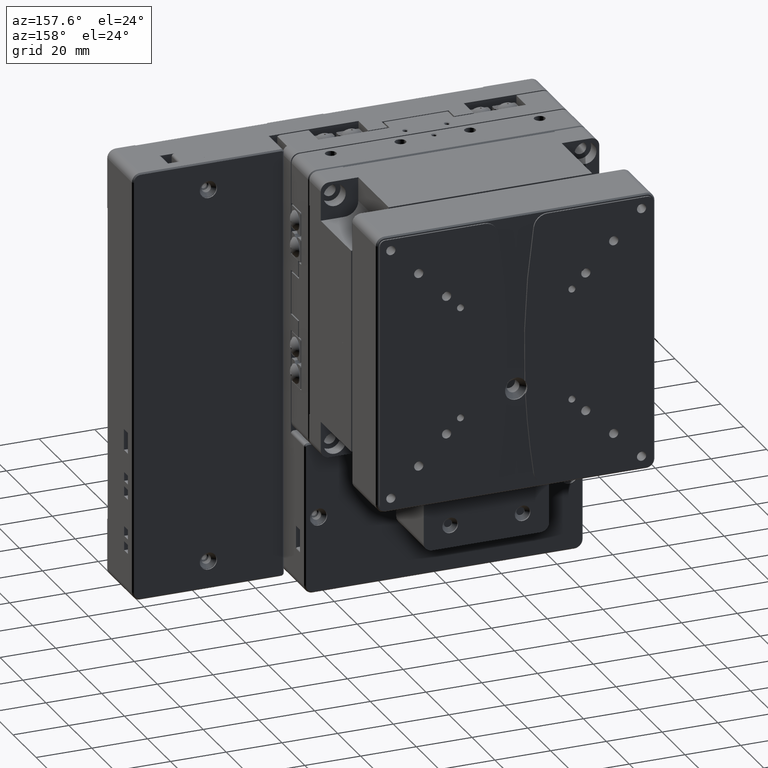
[diagram: clean part render]
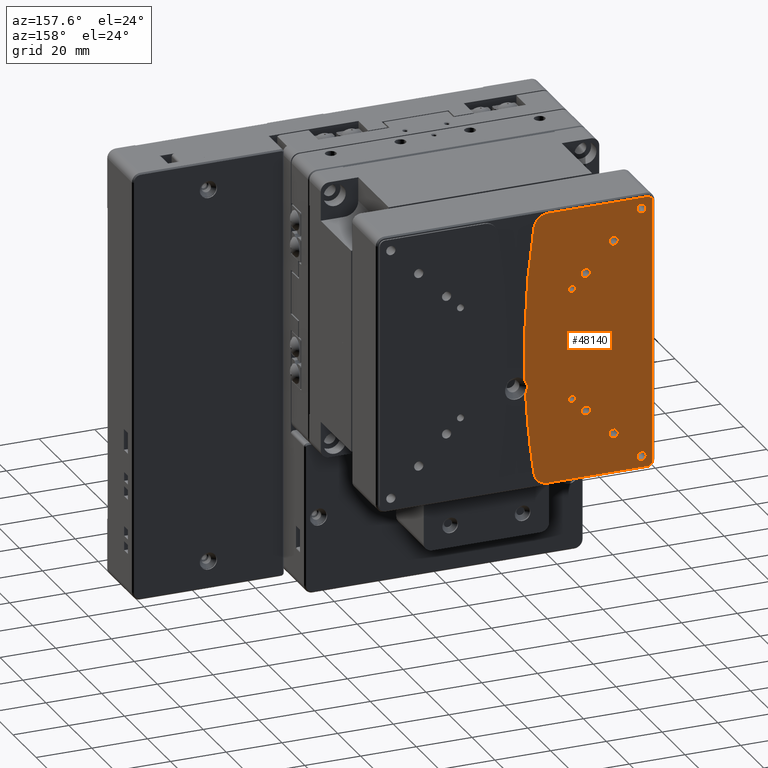
[diagram: same view with one face highlighted and labeled with its STEP entity id]
A machine part, auxiliary view. The second image highlights one B-rep face of the part: STEP entity #48140.
In plain terms, the highlighted planar face has unit normal (-0, 1, -0).
Its self-contained STEP definition (entity closure, byte-faithful):
#51 = CARTESIAN_POINT ( 'NONE',  ( -303.0000000000000000, 101.5000000000000000, 3.826911070425408497E-13 ) ) ;
#88 = VECTOR ( 'NONE', #40896, 1000.000000000000000 ) ;
#167 = DIRECTION ( 'NONE',  ( -3.812484297624379892E-23, 1.000000000000000000, -3.650532473168982942E-23 ) ) ;
#452 = FACE_BOUND ( 'NONE', #54695, .T. ) ;
#501 = AXIS2_PLACEMENT_3D ( 'NONE', #35456, #52552, #39930 ) ;
#608 = AXIS2_PLACEMENT_3D ( 'NONE', #51, #38616, #37796 ) ;
#647 = DIRECTION ( 'NONE',  ( -1.000000000000000000, -3.812484297624374602E-23, 1.387778780781445281E-15 ) ) ;
#1157 = AXIS2_PLACEMENT_3D ( 'NONE', #51674, #5231, #13043 ) ;
#1812 = DIRECTION ( 'NONE',  ( 3.812484297624379892E-23, -1.000000000000000000, 3.650532473168982942E-23 ) ) ;
#2329 = CARTESIAN_POINT ( 'NONE',  ( -43.34999999999994458, 101.5000000000000000, 45.00000000000001421 ) ) ;
#2350 = CIRCLE ( 'NONE', #33606, 2.000000000000001776 ) ;
#2788 = CARTESIAN_POINT ( 'NONE',  ( -11.29981145018092903, 101.5000000000000000, 48.99999999999997868 ) ) ;
#3147 = VERTEX_POINT ( 'NONE', #51242 ) ;
#3273 = DIRECTION ( 'NONE',  ( -1.000000000000000000, 0.000000000000000000, 0.000000000000000000 ) ) ;
#3573 = ORIENTED_EDGE ( 'NONE', *, *, #7753, .T. ) ;
#3678 = CARTESIAN_POINT ( 'NONE',  ( -24.99999999999997513, 101.5000000000000000, 24.99999999999999289 ) ) ;
#4370 = VERTEX_POINT ( 'NONE', #16317 ) ;
#4991 = VERTEX_POINT ( 'NONE', #49998 ) ;
#5231 = DIRECTION ( 'NONE',  ( -3.812484297624379892E-23, 1.000000000000000000, -3.650532473168982942E-23 ) ) ;
#5431 = DIRECTION ( 'NONE',  ( 1.000000000000000000, 0.000000000000000000, -4.205390244792263185E-15 ) ) ;
#5843 = EDGE_CURVE ( 'NONE', #52639, #35747, #44253, .T. ) ;
#6408 = DIRECTION ( 'NONE',  ( 3.812484297624379892E-23, -1.000000000000000000, 3.650532473168982942E-23 ) ) ;
#6844 = CARTESIAN_POINT ( 'NONE',  ( -6.355740457811065447, 101.5000000000000000, 44.74576271186437992 ) ) ;
#7226 = DIRECTION ( 'NONE',  ( -3.812484297624379892E-23, 1.000000000000000000, -3.650532473168982942E-23 ) ) ;
#7753 = EDGE_CURVE ( 'NONE', #23917, #23917, #41611, .T. ) ;
#7982 = VECTOR ( 'NONE', #42242, 1000.000000000000000 ) ;
#8320 = ORIENTED_EDGE ( 'NONE', *, *, #49118, .T. ) ;
#8388 = CARTESIAN_POINT ( 'NONE',  ( -23.35000000000004761, 101.5000000000000000, -25.00000000000002132 ) ) ;
#8858 = CARTESIAN_POINT ( 'NONE',  ( -303.0000000000000000, 101.5000000000000000, 3.826911070425408497E-13 ) ) ;
#9320 = DIRECTION ( 'NONE',  ( -3.812484297624379892E-23, 1.000000000000000000, -3.650532473168982942E-23 ) ) ;
#9730 = CIRCLE ( 'NONE', #39170, 1.649999999999998579 ) ;
#10070 = CIRCLE ( 'NONE', #30748, 4.999999999999971578 ) ;
#10128 = EDGE_CURVE ( 'NONE', #4991, #52639, #2350, .T. ) ;
#10874 = CIRCLE ( 'NONE', #47500, 1.249999999999994227 ) ;
#10931 = CARTESIAN_POINT ( 'NONE',  ( -2.730108031428871550E-14, 101.5000000000000000, -13.00000000000003908 ) ) ;
#11558 = ORIENTED_EDGE ( 'NONE', *, *, #16746, .T. ) ;
#11565 = CIRCLE ( 'NONE', #51730, 300.0000000000000000 ) ;
#12249 = AXIS2_PLACEMENT_3D ( 'NONE', #10931, #19581, #36639 ) ;
#12274 = VECTOR ( 'NONE', #647, 1000.000000000000000 ) ;
#13043 = DIRECTION ( 'NONE',  ( 1.000000000000000000, 3.812484297624374602E-23, -1.387778780781445281E-15 ) ) ;
#13633 = EDGE_CURVE ( 'NONE', #35565, #4991, #18239, .T. ) ;
#14100 = ORIENTED_EDGE ( 'NONE', *, *, #18332, .T. ) ;
#14183 = AXIS2_PLACEMENT_3D ( 'NONE', #49444, #24503, #3273 ) ;
#14315 = ORIENTED_EDGE ( 'NONE', *, *, #42707, .T. ) ;
#14343 = VERTEX_POINT ( 'NONE', #2788 ) ;
#14503 = CARTESIAN_POINT ( 'NONE',  ( -18.74999999999998579, 101.5000000000000000, 19.99999999999998224 ) ) ;
#14677 = EDGE_CURVE ( 'NONE', #14343, #49045, #49027, .T. ) ;
#14825 = EDGE_CURVE ( 'NONE', #49045, #55388, #11565, .T. ) ;
#14922 = CIRCLE ( 'NONE', #53346, 1.649999999999998579 ) ;
#15072 = CARTESIAN_POINT ( 'NONE',  ( -18.75000000000004263, 101.5000000000000000, -20.00000000000003553 ) ) ;
#16317 = CARTESIAN_POINT ( 'NONE',  ( -3.382064038453536092, 101.5000000000000000, -15.13580028087823059 ) ) ;
#16746 = EDGE_CURVE ( 'NONE', #4370, #23611, #28182, .T. ) ;
#16978 = FACE_BOUND ( 'NONE', #28485, .T. ) ;
#17295 = DIRECTION ( 'NONE',  ( -3.812484297624379892E-23, 1.000000000000000000, -3.650532473168982942E-23 ) ) ;
#17508 = FACE_BOUND ( 'NONE', #31858, .T. ) ;
#17742 = DIRECTION ( 'NONE',  ( 3.812484297624379892E-23, -1.000000000000000000, 3.650532473168982942E-23 ) ) ;
#18239 = LINE ( 'NONE', #30296, #12274 ) ;
#18332 = EDGE_CURVE ( 'NONE', #3147, #3147, #14922, .T. ) ;
#19501 = ORIENTED_EDGE ( 'NONE', *, *, #47666, .T. ) ;
#19581 = DIRECTION ( 'NONE',  ( 3.812484297624379892E-23, -1.000000000000000000, 3.650532473168982942E-23 ) ) ;
#20038 = CARTESIAN_POINT ( 'NONE',  ( -3.186702405696692164, 101.5000000000000000, -10.58237145584211625 ) ) ;
#20601 = DIRECTION ( 'NONE',  ( -1.000000000000000000, 0.000000000000000000, 3.469446951953611033E-15 ) ) ;
#20616 = AXIS2_PLACEMENT_3D ( 'NONE', #43047, #30451, #26522 ) ;
#20705 = DIRECTION ( 'NONE',  ( 3.812484297624379892E-23, -1.000000000000000000, 3.650532473168982942E-23 ) ) ;
#21511 = CARTESIAN_POINT ( 'NONE',  ( -11.29981145018092903, 101.5000000000000000, 48.99999999999997868 ) ) ;
#21953 = ORIENTED_EDGE ( 'NONE', *, *, #14677, .T. ) ;
#22181 = CARTESIAN_POINT ( 'NONE',  ( -44.99999999999994316, 101.5000000000000000, 45.00000000000002132 ) ) ;
#22510 = CARTESIAN_POINT ( 'NONE',  ( -49.00000000000005684, 101.5000000000000000, -46.99999999999995737 ) ) ;
#23478 = EDGE_LOOP ( 'NONE', ( #41401 ) ) ;
#23611 = VERTEX_POINT ( 'NONE', #42506 ) ;
#23917 = VERTEX_POINT ( 'NONE', #24453 ) ;
#24420 = CIRCLE ( 'NONE', #31582, 1.649999999999995248 ) ;
#24453 = CARTESIAN_POINT ( 'NONE',  ( -23.34999999999998010, 101.5000000000000000, 24.99999999999999289 ) ) ;
#24503 = DIRECTION ( 'NONE',  ( -3.812484297624379892E-23, 1.000000000000000000, -3.650532473168982942E-23 ) ) ;
#24526 = CARTESIAN_POINT ( 'NONE',  ( -46.99999999999992895, 101.5000000000000000, 47.00000000000002842 ) ) ;
#24591 = CARTESIAN_POINT ( 'NONE',  ( -48.99999999999992895, 101.5000000000000000, 47.00000000000003553 ) ) ;
#24616 = CIRCLE ( 'NONE', #501, 1.649999999999998579 ) ;
#24768 = DIRECTION ( 'NONE',  ( 1.000000000000000000, 0.000000000000000000, -4.205390244792263185E-15 ) ) ;
#25082 = ORIENTED_EDGE ( 'NONE', *, *, #40076, .T. ) ;
#25989 = LINE ( 'NONE', #21511, #7982 ) ;
#26383 = CARTESIAN_POINT ( 'NONE',  ( -19.99999999999997868, 101.5000000000000000, 19.99999999999998579 ) ) ;
#26522 = DIRECTION ( 'NONE',  ( 1.000000000000000000, 0.000000000000000000, -2.775557561562904367E-15 ) ) ;
#26813 = CARTESIAN_POINT ( 'NONE',  ( -35.00000000000005684, 101.5000000000000000, -35.00000000000000711 ) ) ;
#27068 = VERTEX_POINT ( 'NONE', #15072 ) ;
#27279 = ORIENTED_EDGE ( 'NONE', *, *, #31690, .T. ) ;
#28182 = CIRCLE ( 'NONE', #608, 300.0000000000000000 ) ;
#28296 = CARTESIAN_POINT ( 'NONE',  ( -48.99999999999992895, 101.5000000000000000, 44.00000000000004263 ) ) ;
#28485 = EDGE_LOOP ( 'NONE', ( #14100 ) ) ;
#30053 = DIRECTION ( 'NONE',  ( 3.812484297624379892E-23, -1.000000000000000000, 3.650532473168982942E-23 ) ) ;
#30296 = CARTESIAN_POINT ( 'NONE',  ( -11.29981145018106403, 101.5000000000000000, -49.00000000000001421 ) ) ;
#30451 = DIRECTION ( 'NONE',  ( 3.812484297624379892E-23, -1.000000000000000000, 3.650532473168982942E-23 ) ) ;
#30748 = AXIS2_PLACEMENT_3D ( 'NONE', #51733, #17295, #47781 ) ;
#31023 = CARTESIAN_POINT ( 'NONE',  ( -43.35000000000007248, 101.5000000000000000, -45.00000000000000000 ) ) ;
#31582 = AXIS2_PLACEMENT_3D ( 'NONE', #53003, #1812, #49370 ) ;
#31690 = EDGE_CURVE ( 'NONE', #27068, #27068, #43840, .T. ) ;
#31781 = EDGE_LOOP ( 'NONE', ( #46854 ) ) ;
#31858 = EDGE_LOOP ( 'NONE', ( #8320 ) ) ;
#32546 = EDGE_CURVE ( 'NONE', #36585, #36585, #10874, .T. ) ;
#33606 = AXIS2_PLACEMENT_3D ( 'NONE', #38961, #9320, #34777 ) ;
#34288 = FACE_BOUND ( 'NONE', #31781, .T. ) ;
#34753 = ORIENTED_EDGE ( 'NONE', *, *, #32546, .T. ) ;
#34777 = DIRECTION ( 'NONE',  ( -1.000000000000000000, 0.000000000000000000, -1.387778780781444413E-14 ) ) ;
#34926 = VERTEX_POINT ( 'NONE', #31023 ) ;
#35456 = CARTESIAN_POINT ( 'NONE',  ( -45.00000000000007105, 101.5000000000000000, -44.99999999999999289 ) ) ;
#35565 = VERTEX_POINT ( 'NONE', #42635 ) ;
#35747 = VERTEX_POINT ( 'NONE', #24591 ) ;
#35974 = EDGE_LOOP ( 'NONE', ( #3573 ) ) ;
#36220 = EDGE_CURVE ( 'NONE', #35747, #47835, #40665, .T. ) ;
#36585 = VERTEX_POINT ( 'NONE', #14503 ) ;
#36639 = DIRECTION ( 'NONE',  ( 1.000000000000000000, 0.000000000000000000, -2.168404344971008079E-15 ) ) ;
#37352 = CARTESIAN_POINT ( 'NONE',  ( -34.99999999999996447, 101.5000000000000000, 35.00000000000000711 ) ) ;
#37540 = VERTEX_POINT ( 'NONE', #54641 ) ;
#37748 = ORIENTED_EDGE ( 'NONE', *, *, #39076, .T. ) ;
#37767 = DIRECTION ( 'NONE',  ( 1.000000000000000000, 0.000000000000000000, 0.000000000000000000 ) ) ;
#37796 = DIRECTION ( 'NONE',  ( -1.000000000000000000, 0.000000000000000000, 1.387778780781445084E-15 ) ) ;
#37967 = AXIS2_PLACEMENT_3D ( 'NONE', #24526, #7226, #20601 ) ;
#38225 = FACE_BOUND ( 'NONE', #23478, .T. ) ;
#38616 = DIRECTION ( 'NONE',  ( -3.812484297624379892E-23, 1.000000000000000000, -3.650532473168982942E-23 ) ) ;
#38961 = CARTESIAN_POINT ( 'NONE',  ( -47.00000000000005684, 101.5000000000000000, -46.99999999999997158 ) ) ;
#39046 = FACE_BOUND ( 'NONE', #35974, .T. ) ;
#39076 = EDGE_CURVE ( 'NONE', #55388, #4370, #53347, .T. ) ;
#39170 = AXIS2_PLACEMENT_3D ( 'NONE', #37352, #46030, #24768 ) ;
#39741 = ORIENTED_EDGE ( 'NONE', *, *, #36220, .T. ) ;
#39846 = CIRCLE ( 'NONE', #46134, 1.649999999999998579 ) ;
#39930 = DIRECTION ( 'NONE',  ( 1.000000000000000000, 0.000000000000000000, -4.205390244792263185E-15 ) ) ;
#40076 = EDGE_CURVE ( 'NONE', #44849, #44849, #39846, .T. ) ;
#40665 = CIRCLE ( 'NONE', #37967, 2.000000000000001776 ) ;
#40736 = ORIENTED_EDGE ( 'NONE', *, *, #14825, .T. ) ;
#40896 = DIRECTION ( 'NONE',  ( 1.387778780781445281E-15, 3.650532473168988232E-23, 1.000000000000000000 ) ) ;
#41270 = ORIENTED_EDGE ( 'NONE', *, *, #5843, .T. ) ;
#41401 = ORIENTED_EDGE ( 'NONE', *, *, #51409, .T. ) ;
#41506 = ORIENTED_EDGE ( 'NONE', *, *, #13633, .T. ) ;
#41519 = EDGE_LOOP ( 'NONE', ( #25082 ) ) ;
#41611 = CIRCLE ( 'NONE', #46953, 1.649999999999995248 ) ;
#42242 = DIRECTION ( 'NONE',  ( 1.000000000000000000, 3.812484297624374602E-23, -1.387778780781445281E-15 ) ) ;
#42244 = EDGE_CURVE ( 'NONE', #37540, #37540, #9730, .T. ) ;
#42419 = FACE_OUTER_BOUND ( 'NONE', #51229, .T. ) ;
#42506 = CARTESIAN_POINT ( 'NONE',  ( -6.355740457811231536, 101.5000000000000000, -44.74576271186444387 ) ) ;
#42576 = EDGE_LOOP ( 'NONE', ( #34753 ) ) ;
#42635 = CARTESIAN_POINT ( 'NONE',  ( -11.29981145018100896, 101.5000000000000000, -49.00000000000001421 ) ) ;
#42707 = EDGE_CURVE ( 'NONE', #47835, #14343, #25989, .T. ) ;
#43047 = CARTESIAN_POINT ( 'NONE',  ( -20.00000000000003908, 101.5000000000000000, -20.00000000000003197 ) ) ;
#43537 = FACE_BOUND ( 'NONE', #41519, .T. ) ;
#43840 = CIRCLE ( 'NONE', #20616, 1.249999999999994227 ) ;
#43895 = DIRECTION ( 'NONE',  ( 1.000000000000000000, 0.000000000000000000, -4.205390244792263185E-15 ) ) ;
#44253 = LINE ( 'NONE', #28296, #88 ) ;
#44704 = CARTESIAN_POINT ( 'NONE',  ( -46.99999999999992184, 101.5000000000000000, 49.00000000000002842 ) ) ;
#44849 = VERTEX_POINT ( 'NONE', #2329 ) ;
#46030 = DIRECTION ( 'NONE',  ( 3.812484297624379892E-23, -1.000000000000000000, 3.650532473168982942E-23 ) ) ;
#46134 = AXIS2_PLACEMENT_3D ( 'NONE', #22181, #17742, #5431 ) ;
#46627 = PLANE ( 'NONE',  #1157 ) ;
#46854 = ORIENTED_EDGE ( 'NONE', *, *, #42244, .T. ) ;
#46872 = DIRECTION ( 'NONE',  ( -1.000000000000000000, 0.000000000000000000, 1.387778780781445084E-15 ) ) ;
#46953 = AXIS2_PLACEMENT_3D ( 'NONE', #3678, #20705, #37767 ) ;
#47133 = DIRECTION ( 'NONE',  ( 1.000000000000000000, 0.000000000000000000, -2.775557561562904367E-15 ) ) ;
#47500 = AXIS2_PLACEMENT_3D ( 'NONE', #26383, #30053, #47133 ) ;
#47666 = EDGE_CURVE ( 'NONE', #23611, #35565, #10070, .T. ) ;
#47717 = FACE_BOUND ( 'NONE', #42576, .T. ) ;
#47781 = DIRECTION ( 'NONE',  ( -1.000000000000000000, 0.000000000000000000, 2.775557561562907128E-15 ) ) ;
#47835 = VERTEX_POINT ( 'NONE', #44704 ) ;
#48140 = ADVANCED_FACE ( 'NONE', ( #47717, #452, #38225, #16978, #17508, #43537, #34288, #39046, #42419 ), #46627, .T. ) ;
#48220 = ORIENTED_EDGE ( 'NONE', *, *, #10128, .T. ) ;
#49027 = CIRCLE ( 'NONE', #14183, 4.999999999999995559 ) ;
#49045 = VERTEX_POINT ( 'NONE', #6844 ) ;
#49118 = EDGE_CURVE ( 'NONE', #50657, #50657, #24420, .T. ) ;
#49370 = DIRECTION ( 'NONE',  ( 1.000000000000000000, 0.000000000000000000, 0.000000000000000000 ) ) ;
#49444 = CARTESIAN_POINT ( 'NONE',  ( -11.29981145018093613, 101.5000000000000000, 43.99999999999998579 ) ) ;
#49998 = CARTESIAN_POINT ( 'NONE',  ( -47.00000000000006395, 101.5000000000000000, -48.99999999999996447 ) ) ;
#50657 = VERTEX_POINT ( 'NONE', #8388 ) ;
#51229 = EDGE_LOOP ( 'NONE', ( #40736, #37748, #11558, #19501, #41506, #48220, #41270, #39741, #14315, #21953 ) ) ;
#51242 = CARTESIAN_POINT ( 'NONE',  ( -33.35000000000005826, 101.5000000000000000, -35.00000000000001421 ) ) ;
#51409 = EDGE_CURVE ( 'NONE', #34926, #34926, #24616, .T. ) ;
#51674 = CARTESIAN_POINT ( 'NONE',  ( -11.29981145018093613, 101.5000000000000000, 43.99999999999998579 ) ) ;
#51730 = AXIS2_PLACEMENT_3D ( 'NONE', #8858, #167, #46872 ) ;
#51733 = CARTESIAN_POINT ( 'NONE',  ( -11.29981145018100186, 101.5000000000000000, -44.00000000000002842 ) ) ;
#52552 = DIRECTION ( 'NONE',  ( 3.812484297624379892E-23, -1.000000000000000000, 3.650532473168982942E-23 ) ) ;
#52639 = VERTEX_POINT ( 'NONE', #22510 ) ;
#53003 = CARTESIAN_POINT ( 'NONE',  ( -25.00000000000004263, 101.5000000000000000, -25.00000000000002132 ) ) ;
#53346 = AXIS2_PLACEMENT_3D ( 'NONE', #26813, #6408, #43895 ) ;
#53347 = CIRCLE ( 'NONE', #12249, 4.000000000000001776 ) ;
#54641 = CARTESIAN_POINT ( 'NONE',  ( -33.34999999999996589, 101.5000000000000000, 35.00000000000000000 ) ) ;
#54695 = EDGE_LOOP ( 'NONE', ( #27279 ) ) ;
#55388 = VERTEX_POINT ( 'NONE', #20038 ) ;